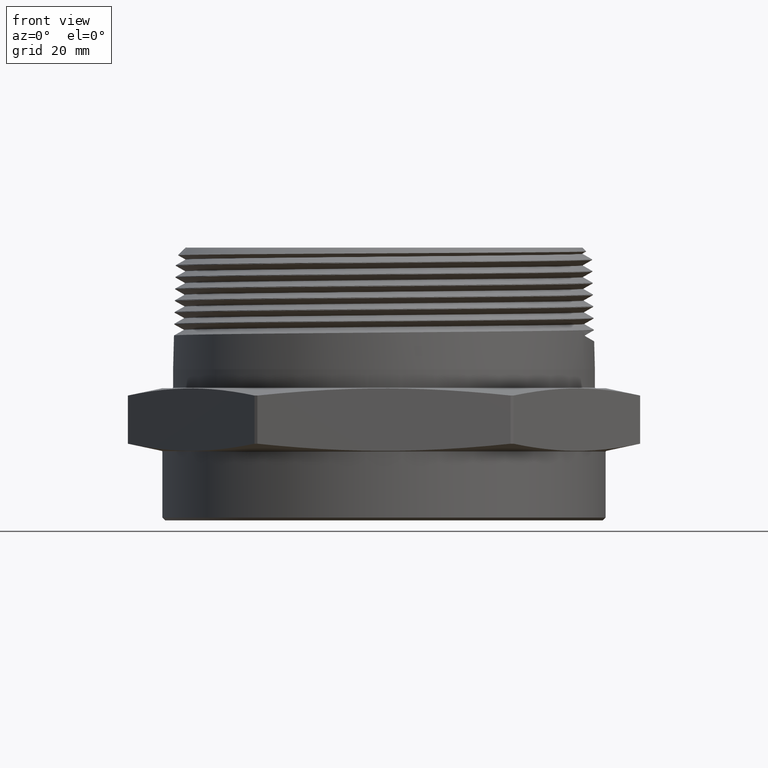
[diagram: clean part render]
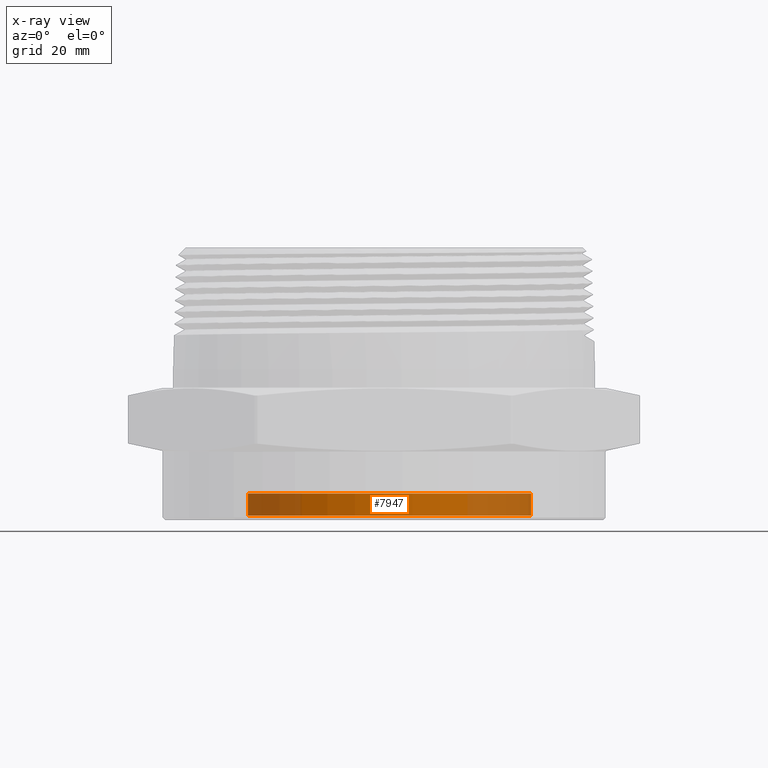
[diagram: x-ray — body ghosted, one internal face saturated and labeled with its STEP entity id]
A machine part, front view, then the same camera in x-ray: the body is ghosted and one INTERNAL B-rep face — a face not visible from any outside direction — is saturated and labeled: STEP entity #7947.
In plain terms, the highlighted cylindrical surface (partial cylindrical patch) has radius 39.8526 mm, axis along (-0, 0, 1).
Its self-contained STEP definition (entity closure, byte-faithful):
#1617 = VERTEX_POINT ( 'NONE', #4433 ) ;
#1722 = CARTESIAN_POINT ( 'NONE',  ( -1.452319946062096600, -0.1164497935006339900, 0.03999999999999984800 ) ) ;
#1763 = CARTESIAN_POINT ( 'NONE',  ( -1.452319946062096600, -0.1164497935006339900, 0.2749606299212591900 ) ) ;
#1777 = CARTESIAN_POINT ( 'NONE',  ( 1.685680053937865400, -0.1164497935006337900, 0.03999999999999984800 ) ) ;
#2153 = ORIENTED_EDGE ( 'NONE', *, *, #8238, .F. ) ;
#2154 = ORIENTED_EDGE ( 'NONE', *, *, #8231, .T. ) ;
#2155 = ORIENTED_EDGE ( 'NONE', *, *, #8237, .T. ) ;
#2156 = ORIENTED_EDGE ( 'NONE', *, *, #8235, .T. ) ;
#2179 = VERTEX_POINT ( 'NONE', #1722 ) ;
#2656 = CIRCLE ( 'NONE', #2768, 1.568999999999981100 ) ;
#2662 = CIRCLE ( 'NONE', #2770, 1.568999999999981100 ) ;
#2663 = LINE ( 'NONE', #3702, #2669 ) ;
#2668 = LINE ( 'NONE', #3707, #2671 ) ;
#2669 = VECTOR ( 'NONE', #3706, 39.37007874015748100 ) ;
#2671 = VECTOR ( 'NONE', #3708, 39.37007874015748100 ) ;
#2711 = AXIS2_PLACEMENT_3D ( 'NONE', #7926, #7927, #7925 ) ;
#2768 = AXIS2_PLACEMENT_3D ( 'NONE', #3692, #3693, #3694 ) ;
#2770 = AXIS2_PLACEMENT_3D ( 'NONE', #3703, #3704, #3705 ) ;
#2878 = VERTEX_POINT ( 'NONE', #1763 ) ;
#2894 = EDGE_LOOP ( 'NONE', ( #2156, #2155, #2154, #2153 ) ) ;
#2944 = CYLINDRICAL_SURFACE ( 'NONE', #2711, 1.568999999999981100 ) ;
#2945 = FACE_OUTER_BOUND ( 'NONE', #2894, .T. ) ;
#2988 = VERTEX_POINT ( 'NONE', #1777 ) ;
#3692 = CARTESIAN_POINT ( 'NONE',  ( 0.1166800539378845000, -0.1164497935006339900, 0.03999999999999984800 ) ) ;
#3693 = DIRECTION ( 'NONE',  ( -0.0000000000000000000, -0.0000000000000000000, 1.000000000000000000 ) ) ;
#3694 = DIRECTION ( 'NONE',  ( 1.000000000000000000, 0.0000000000000000000, 0.0000000000000000000 ) ) ;
#3702 = CARTESIAN_POINT ( 'NONE',  ( 1.685680053937865400, -0.1164497935006337900, 0.3149606299212598400 ) ) ;
#3703 = CARTESIAN_POINT ( 'NONE',  ( 0.1166800539378845000, -0.1164497935006339900, 0.2749606299212591900 ) ) ;
#3704 = DIRECTION ( 'NONE',  ( 0.0000000000000000000, 0.0000000000000000000, -1.000000000000000000 ) ) ;
#3705 = DIRECTION ( 'NONE',  ( 1.000000000000000000, 0.0000000000000000000, 0.0000000000000000000 ) ) ;
#3706 = DIRECTION ( 'NONE',  ( -0.0000000000000000000, -0.0000000000000000000, -1.000000000000000000 ) ) ;
#3707 = CARTESIAN_POINT ( 'NONE',  ( -1.452319946062096600, -0.1164497935006339900, 0.3149606299212598400 ) ) ;
#3708 = DIRECTION ( 'NONE',  ( -0.0000000000000000000, -0.0000000000000000000, -1.000000000000000000 ) ) ;
#4433 = CARTESIAN_POINT ( 'NONE',  ( 1.685680053937865400, -0.1164497935006337900, 0.2749606299212591900 ) ) ;
#7925 = DIRECTION ( 'NONE',  ( -1.000000000000000000, 0.0000000000000000000, 0.0000000000000000000 ) ) ;
#7926 = CARTESIAN_POINT ( 'NONE',  ( 0.1166800539378845000, -0.1164497935006339900, 0.3149606299212598400 ) ) ;
#7927 = DIRECTION ( 'NONE',  ( -0.0000000000000000000, -0.0000000000000000000, -1.000000000000000000 ) ) ;
#7947 = ADVANCED_FACE ( 'NONE', ( #2945 ), #2944, .T. ) ;
#8231 = EDGE_CURVE ( 'NONE', #2988, #2179, #2656, .T. ) ;
#8235 = EDGE_CURVE ( 'NONE', #2878, #1617, #2662, .T. ) ;
#8237 = EDGE_CURVE ( 'NONE', #1617, #2988, #2663, .T. ) ;
#8238 = EDGE_CURVE ( 'NONE', #2878, #2179, #2668, .T. ) ;